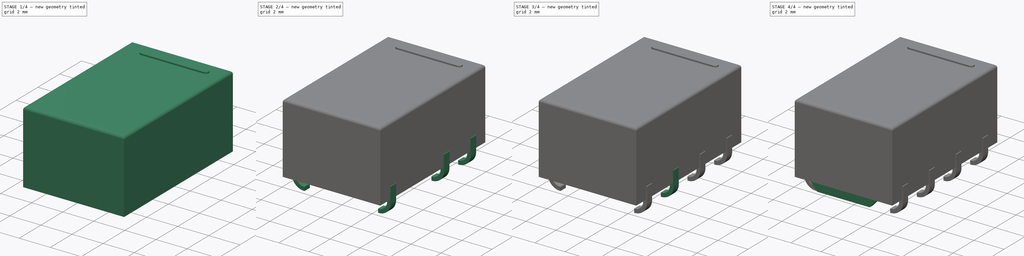
[diagram: build sequence overview — one tinted view per stage of 4, left to right]
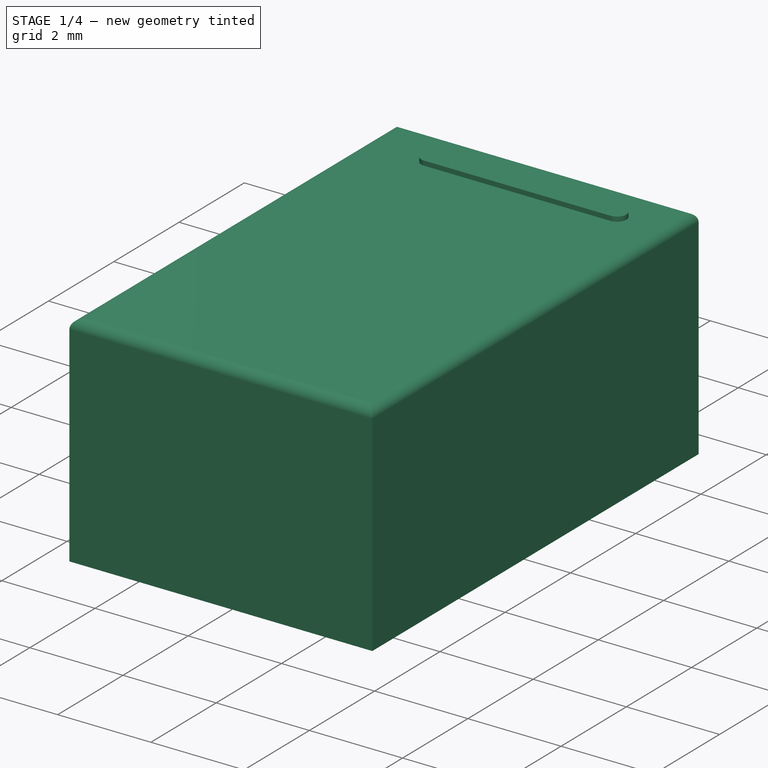
[diagram: stage 1 of 4 — iso view after this stage's code; geometry added in this stage tinted green]
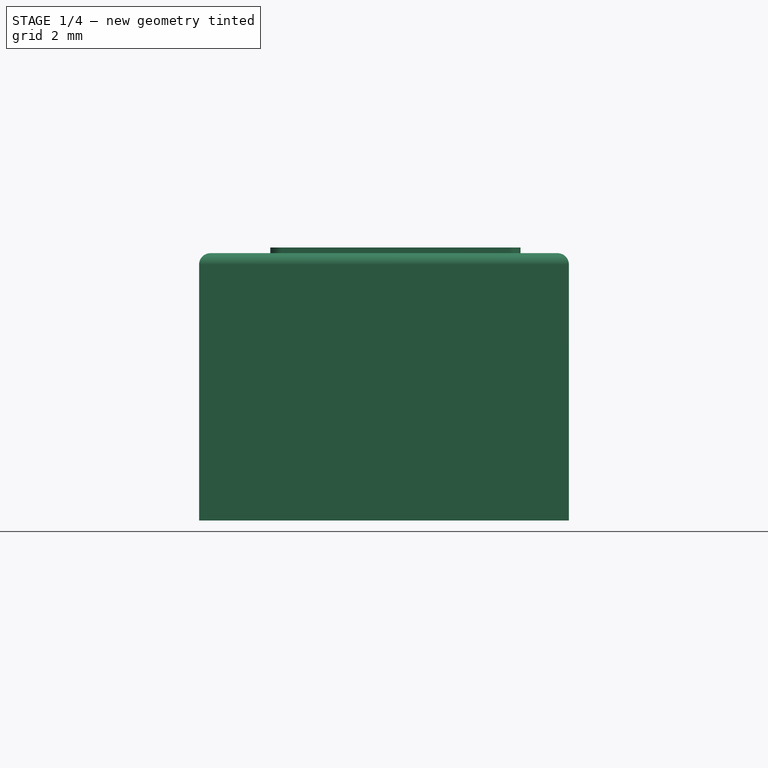
[diagram: stage 1 of 4 — front view after this stage's code; geometry added in this stage tinted green]
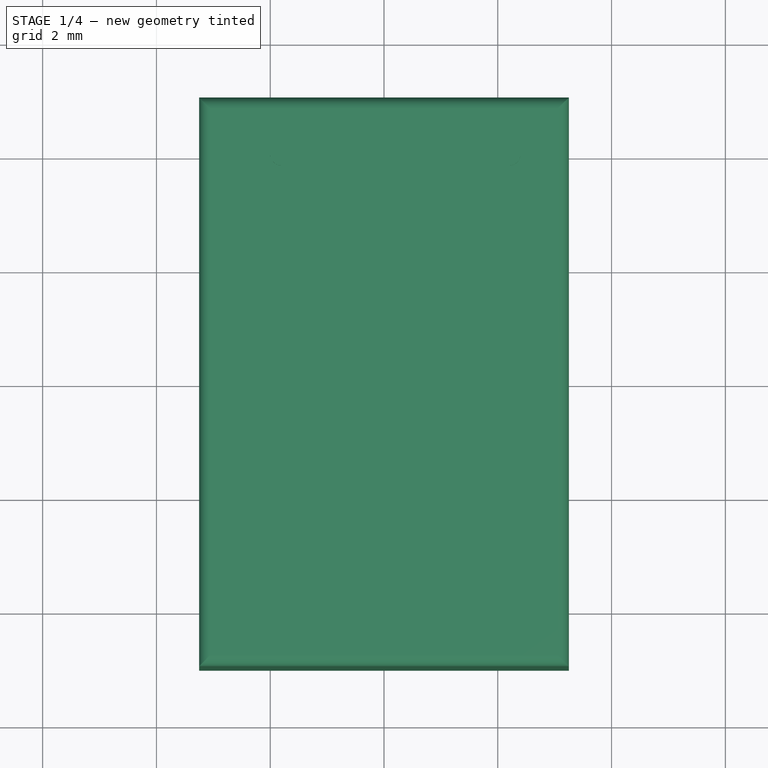
[diagram: stage 1 of 4 — top view after this stage's code; geometry added in this stage tinted green]
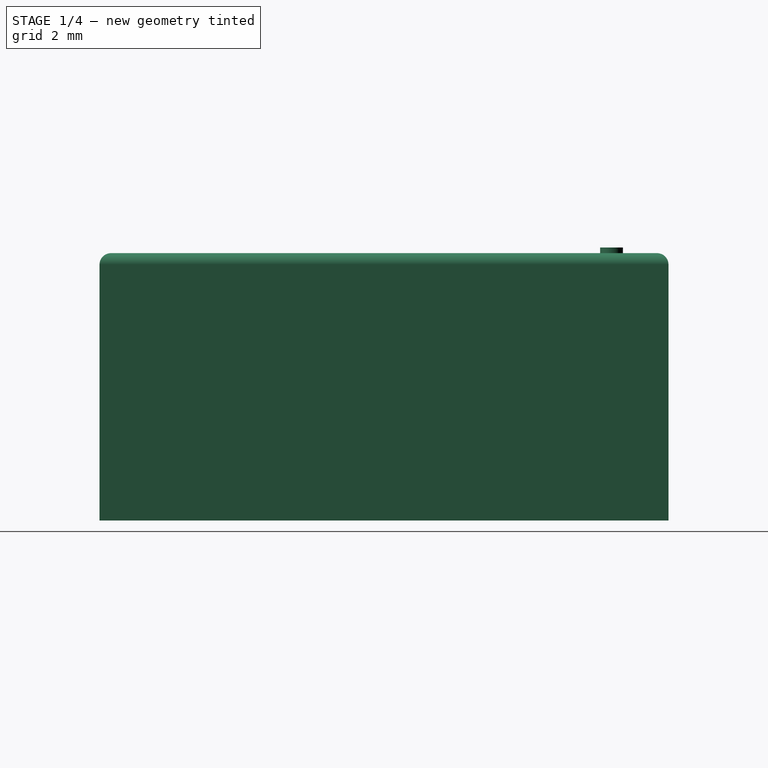
[diagram: stage 1 of 4 — right view after this stage's code; geometry added in this stage tinted green]
FCSTD DOCUMENT  (FreeCAD 0.16R6712 (Git))
Label: Relay_DPDT_Omron_G6K-2G
License: All rights reserved
LicenseURL: http://en.wikipedia.org/wiki/All_rights_reserved
objects: Sketcher::SketchObject×9, PartDesign::Pad×9, PartDesign::Fillet×1, Part::MultiFuse×1
note: 29 computed .brp shape members not serialized (recipe doc carries the construction recipe); baked Part::Feature solids carry a one-line shape summary decoded from their .brp

FEATURE [Sketcher::SketchObject] Sketch
  Placement = pos=(0,0,1) rot=(0,0,-1;1.5708rad)
  expr: Constraints[11] = 6.5 / 2
  sketch-geometry (4):
    g0: LineSegment StartX=-5 StartY=-3.25 StartZ=0 EndX=5 EndY=-3.25 EndZ=0
    g1: LineSegment StartX=5 StartY=-3.25 StartZ=0 EndX=5 EndY=3.25 EndZ=0
    g2: LineSegment StartX=5 StartY=3.25 StartZ=0 EndX=-5 EndY=3.25 EndZ=0
    g3: LineSegment StartX=-5 StartY=3.25 StartZ=0 EndX=-5 EndY=-3.25 EndZ=0
  constraints (12):
    c: Coincident(g0,g1)
    c: Coincident(g1,g2)
    c: Coincident(g2,g3)
    c: Coincident(g3,g0)
    c: Horizontal(g0)
    c: Horizontal(g2)
    c: Vertical(g1)
    c: Vertical(g3)
    c: DistanceX(g2,g2) = 10
    c: DistanceY(g1,g1) = 6.5
    c: DistanceX(g0,g-1) = 5
    c: DistanceY(g0,g-1) = 3.25
FEATURE [PartDesign::Pad] Pad
  Length = 4.7
  Length2 = 100
  Placement = pos=(0,0,1) rot=(0,0,-1;1.5708rad)
  Sketch = -> Sketch
  Type = 0
FEATURE [PartDesign::Pad] Pad014
  Length = 0.2
  Length2 = 100
  Placement = pos=(0,0,5.6) rot=(0,0,-1;1.5708rad)
  Sketch = -> Sketch001
  Type = 0
FEATURE [PartDesign::Fillet] Fillet
  Base = -> Pad [Edge4,Edge7,Edge10,Edge12]
  Placement = pos=(0,0,1) rot=(0,0,-1;1.5708rad)
  Radius = 0.2
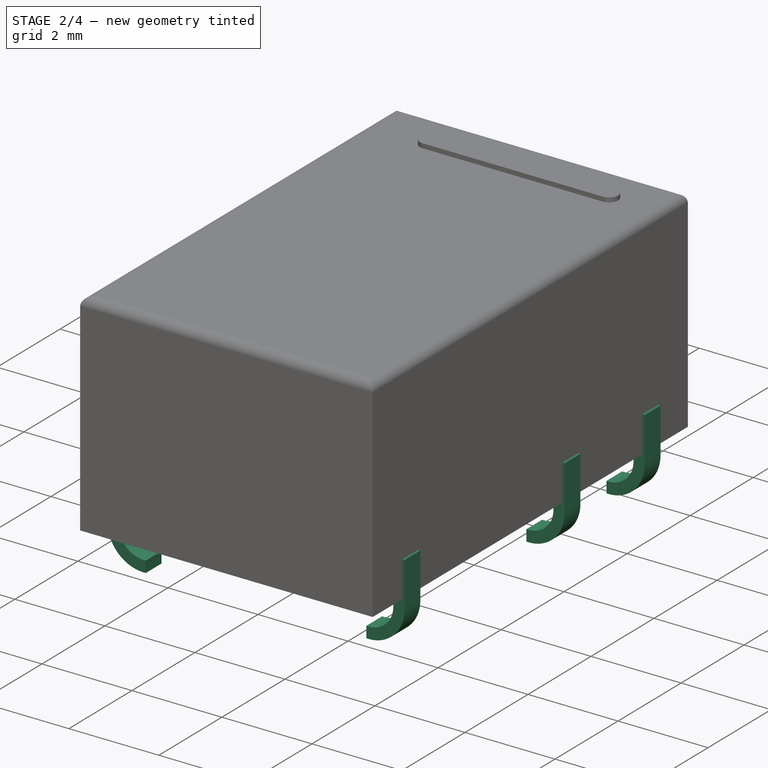
[diagram: stage 2 of 4 — iso view after this stage's code; geometry added in this stage tinted green]
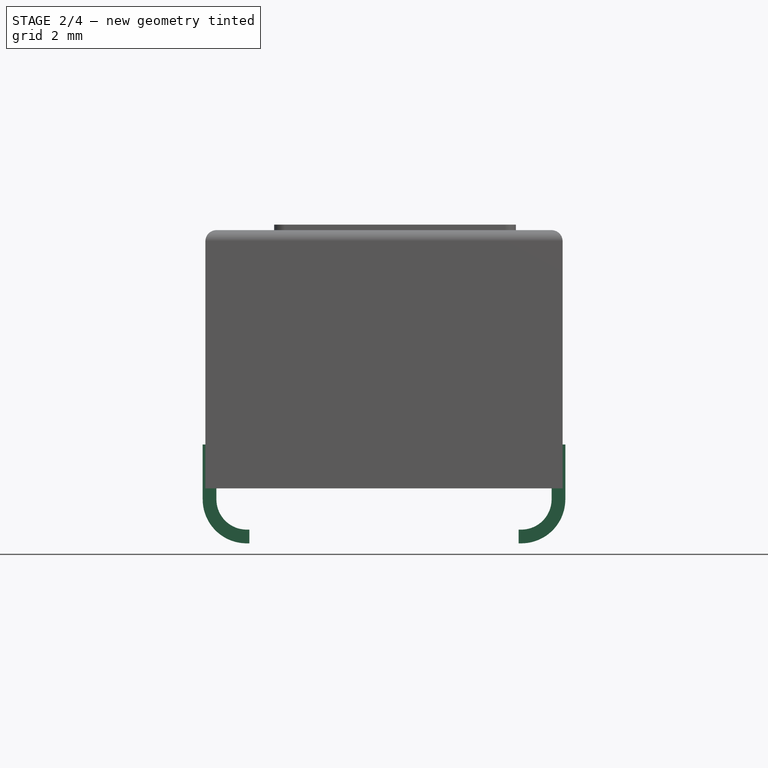
[diagram: stage 2 of 4 — front view after this stage's code; geometry added in this stage tinted green]
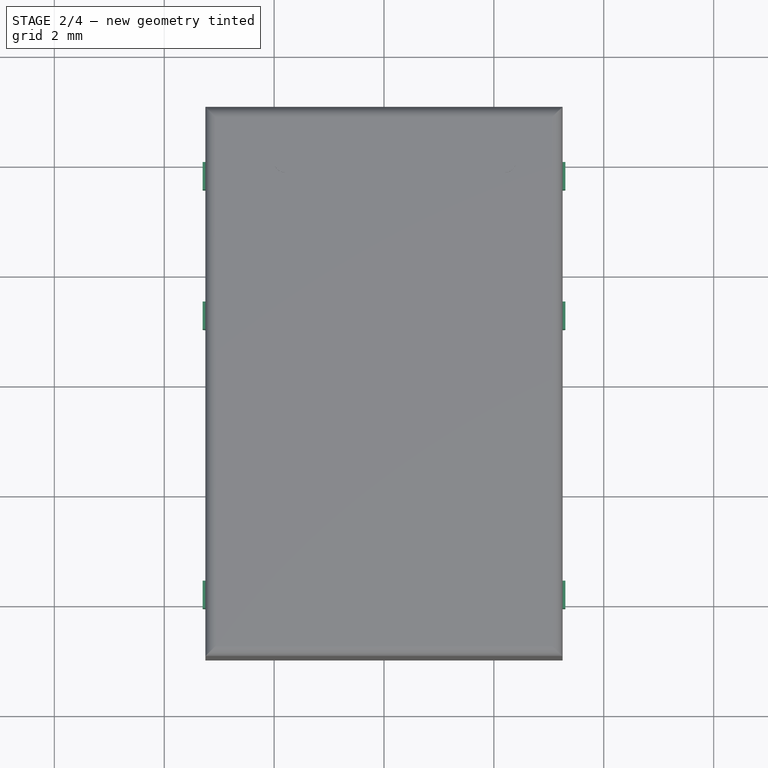
[diagram: stage 2 of 4 — top view after this stage's code; geometry added in this stage tinted green]
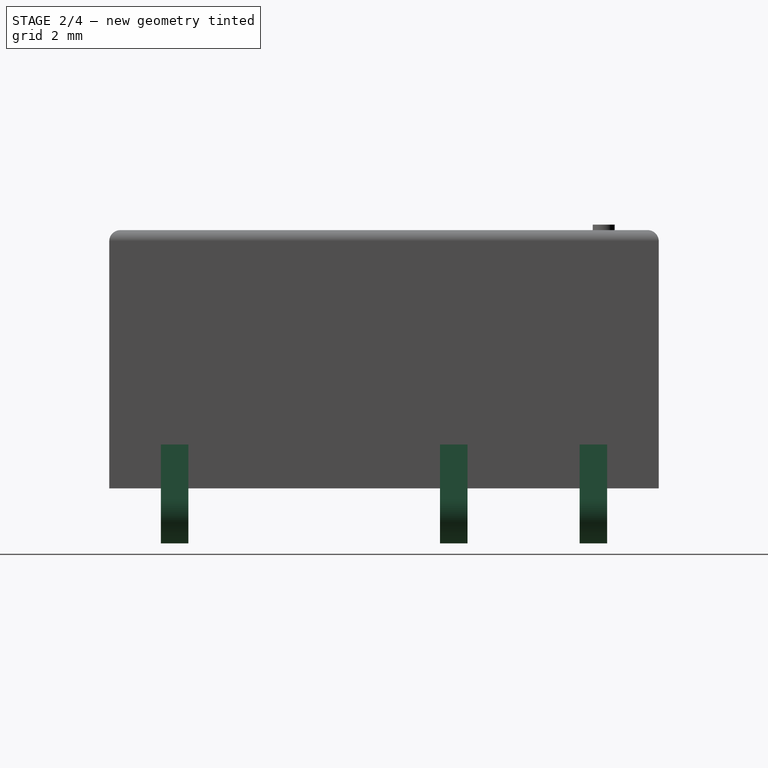
[diagram: stage 2 of 4 — right view after this stage's code; geometry added in this stage tinted green]
FEATURE [Sketcher::SketchObject] Sketch012
  Placement = pos=(0,1.27,0) rot=(1,0,0;1.5708rad)
  sketch-geometry (23):
    g0: LineSegment [constr] StartX=-3.3 StartY=1.8 StartZ=0 EndX=3.3 EndY=1.8 EndZ=0
    g1: LineSegment [constr] StartX=-2.45 StartY=7.2e-11 StartZ=0 EndX=2.45 EndY=7.2e-11 EndZ=0
    g2: GeomPoint [constr] X=0 Y=1.8 Z=0
    g3: LineSegment StartX=-3.3 StartY=1.8 StartZ=0 EndX=-3.05 EndY=1.8 EndZ=0
    g4: LineSegment StartX=-3.05 StartY=1.8 StartZ=0 EndX=-3.05 EndY=0.8 EndZ=0
    g5: LineSegment StartX=-3.3 StartY=1.8 StartZ=0 EndX=-3.3 EndY=0.8 EndZ=0
    g6: LineSegment StartX=-2.45 StartY=7.2e-11 StartZ=0 EndX=-2.45 EndY=0.25 EndZ=0
    g7: LineSegment StartX=-2.45 StartY=0.25 StartZ=0 EndX=-2.5 EndY=0.25 EndZ=0
    g8: LineSegment StartX=-2.45 StartY=7.2e-11 StartZ=0 EndX=-2.5 EndY=0 EndZ=0
    g9: ArcOfCircle CenterX=-2.5 CenterY=0.8 CenterZ=0 NormalX=0 NormalY=0 NormalZ=1 Radius=0.55 StartAngle=3.14159 EndAngle=4.71239
    g10: ArcOfCircle CenterX=-2.5 CenterY=0.8 CenterZ=0 NormalX=0 NormalY=0 NormalZ=1 Radius=0.8 StartAngle=3.14159 EndAngle=4.71239
    g11: LineSegment [constr] StartX=-3.05 StartY=0.8 StartZ=0 EndX=-2.5 EndY=0.8 EndZ=0
    g12: LineSegment [constr] StartX=-2.5 StartY=0.8 StartZ=0 EndX=-2.5 EndY=0.25 EndZ=0
    g13: LineSegment [constr] StartX=2.5 StartY=0.8 StartZ=0 EndX=2.5 EndY=0.25 EndZ=0
    g14: LineSegment [constr] StartX=2.5 StartY=0.8 StartZ=0 EndX=3.05 EndY=0.8 EndZ=0
    g15: ArcOfCircle CenterX=2.5 CenterY=0.8 CenterZ=0 NormalX=0 NormalY=0 NormalZ=1 Radius=0.55 StartAngle=4.71239 EndAngle=6.28319
    g16: ArcOfCircle CenterX=2.5 CenterY=0.8 CenterZ=0 NormalX=0 NormalY=0 NormalZ=1 Radius=0.8 StartAngle=4.7124 EndAngle=6.28319
    g17: LineSegment StartX=2.5 StartY=0.25 StartZ=0 EndX=2.45 EndY=0.25 EndZ=0
    g18: LineSegment StartX=2.45 StartY=0.25 StartZ=0 EndX=2.45 EndY=7.2e-11 EndZ=0
    g19: LineSegment StartX=2.45 StartY=7.2e-11 StartZ=0 EndX=2.50001 EndY=7.2e-11 EndZ=0
    g20: LineSegment StartX=3.3 StartY=0.8 StartZ=0 EndX=3.3 EndY=1.8 EndZ=0
    g21: LineSegment StartX=3.3 StartY=1.8 StartZ=0 EndX=3.05 EndY=1.8 EndZ=0
    g22: LineSegment StartX=3.05 StartY=1.8 StartZ=0 EndX=3.05 EndY=0.8 EndZ=0
  constraints (63):
    c: Horizontal(g0)
    c: Horizontal(g1)
    c: Symmetric(g1,g1,g-1)
    c: PointOnObject(g2,g0)
    c: PointOnObject(g2,g-2)
    c: Symmetric(g0,g0,g2)
    c: DistanceY(g1,g0) = 1.8
    c: DistanceX(g1,g1) = 4.9
    c: DistanceX(g0,g0) = 6.6
    c: Coincident(g3,g0)
    c: PointOnObject(g3,g0)
    c: Coincident(g4,g3)
    c: Vertical(g4)
    c: Coincident(g5,g0)
    c: Vertical(g5)
    c: Coincident(g6,g1)
    c: Vertical(g6)
    c: Coincident(g7,g6)
    c: Horizontal(g7)
    c: Coincident(g8,g1)
    c: PointOnObject(g8,g-1)
    c: Coincident(g9,g4)
    c: Coincident(g9,g7)
    c: Coincident(g10,g9)
    c: Coincident(g10,g5)
    c: Coincident(g10,g8)
    c: Coincident(g11,g4)
    c: Coincident(g11,g9)
    c: Coincident(g12,g9)
    c: Coincident(g12,g7)
    c: Vertical(g12)
    c: Horizontal(g11)
    c: DistanceX(g0,g3) = 0.25
    c: Equal(g7,g8)
    c: Equal(g5,g4)
    c: DistanceY(g1,g5) = 0.8
    c: Vertical(g13)
    c: Coincident(g14,g13)
    c: Horizontal(g14)
    c: Coincident(g15,g13)
    c: Coincident(g15,g14)
    c: Coincident(g15,g13)
    c: Coincident(g16,g13)
    c: Coincident(g17,g13)
    c: Horizontal(g17)
    c: Coincident(g18,g17)
    c: Coincident(g18,g1)
    c: Vertical(g18)
    c: Coincident(g19,g1)
    c: Coincident(g19,g16)
    c: Horizontal(g19)
    c: Coincident(g20,g16)
    c: Coincident(g20,g0)
    c: Vertical(g20)
    c: Coincident(g21,g0)
    c: PointOnObject(g21,g0)
    c: Coincident(g22,g21)
    c: Coincident(g22,g14)
    c: Vertical(g22)
    c: Equal(g4,g22)
    c: Equal(g22,g20)
    c: Equal(g21,g6)
    c: Equal(g21,g18)
FEATURE [PartDesign::Pad] Pad011
  Length = 0.5
  Length2 = 100
  Midplane = true
  Placement = pos=(0,1.27,0) rot=(1,0,0;1.5708rad)
  Sketch = -> Sketch012
  Type = 0
FEATURE [Sketcher::SketchObject] Sketch013
  Placement = pos=(0,3.81,0) rot=(1,0,0;1.5708rad)
  expr: Placement.Base.y = 3 * 1.27
  sketch-geometry (23):
    g0: LineSegment [constr] StartX=-3.3 StartY=1.8 StartZ=0 EndX=3.3 EndY=1.8 EndZ=0
    g1: LineSegment [constr] StartX=-2.45 StartY=7.2e-11 StartZ=0 EndX=2.45 EndY=7.2e-11 EndZ=0
    g2: GeomPoint [constr] X=0 Y=1.8 Z=0
    g3: LineSegment StartX=-3.3 StartY=1.8 StartZ=0 EndX=-3.05 EndY=1.8 EndZ=0
    g4: LineSegment StartX=-3.05 StartY=1.8 StartZ=0 EndX=-3.05 EndY=0.8 EndZ=0
    g5: LineSegment StartX=-3.3 StartY=1.8 StartZ=0 EndX=-3.3 EndY=0.8 EndZ=0
    g6: LineSegment StartX=-2.45 StartY=7.2e-11 StartZ=0 EndX=-2.45 EndY=0.25 EndZ=0
    g7: LineSegment StartX=-2.45 StartY=0.25 StartZ=0 EndX=-2.5 EndY=0.25 EndZ=0
    g8: LineSegment StartX=-2.45 StartY=7.2e-11 StartZ=0 EndX=-2.5 EndY=0 EndZ=0
    g9: ArcOfCircle CenterX=-2.5 CenterY=0.8 CenterZ=0 NormalX=0 NormalY=0 NormalZ=1 Radius=0.55 StartAngle=3.14159 EndAngle=4.71239
    g10: ArcOfCircle CenterX=-2.5 CenterY=0.8 CenterZ=0 NormalX=0 NormalY=0 NormalZ=1 Radius=0.8 StartAngle=3.14159 EndAngle=4.71239
    g11: LineSegment [constr] StartX=-3.05 StartY=0.8 StartZ=0 EndX=-2.5 EndY=0.8 EndZ=0
    g12: LineSegment [constr] StartX=-2.5 StartY=0.8 StartZ=0 EndX=-2.5 EndY=0.25 EndZ=0
    g13: LineSegment [constr] StartX=2.5 StartY=0.8 StartZ=0 EndX=2.5 EndY=0.25 EndZ=0
    g14: LineSegment [constr] StartX=2.5 StartY=0.8 StartZ=0 EndX=3.05 EndY=0.8 EndZ=0
    g15: ArcOfCircle CenterX=2.5 CenterY=0.8 CenterZ=0 NormalX=0 NormalY=0 NormalZ=1 Radius=0.55 StartAngle=4.71239 EndAngle=6.28319
    g16: ArcOfCircle CenterX=2.5 CenterY=0.8 CenterZ=0 NormalX=0 NormalY=0 NormalZ=1 Radius=0.8 StartAngle=4.7124 EndAngle=6.28319
    g17: LineSegment StartX=2.5 StartY=0.25 StartZ=0 EndX=2.45 EndY=0.25 EndZ=0
    g18: LineSegment StartX=2.45 StartY=0.25 StartZ=0 EndX=2.45 EndY=7.2e-11 EndZ=0
    g19: LineSegment StartX=2.45 StartY=7.2e-11 StartZ=0 EndX=2.50001 EndY=7.2e-11 EndZ=0
    g20: LineSegment StartX=3.3 StartY=0.8 StartZ=0 EndX=3.3 EndY=1.8 EndZ=0
    g21: LineSegment StartX=3.3 StartY=1.8 StartZ=0 EndX=3.05 EndY=1.8 EndZ=0
    g22: LineSegment StartX=3.05 StartY=1.8 StartZ=0 EndX=3.05 EndY=0.8 EndZ=0
  constraints (63):
    c: Horizontal(g0)
    c: Horizontal(g1)
    c: Symmetric(g1,g1,g-1)
    c: PointOnObject(g2,g0)
    c: PointOnObject(g2,g-2)
    c: Symmetric(g0,g0,g2)
    c: DistanceY(g1,g0) = 1.8
    c: DistanceX(g1,g1) = 4.9
    c: DistanceX(g0,g0) = 6.6
    c: Coincident(g3,g0)
    c: PointOnObject(g3,g0)
    c: Coincident(g4,g3)
    c: Vertical(g4)
    c: Coincident(g5,g0)
    c: Vertical(g5)
    c: Coincident(g6,g1)
    c: Vertical(g6)
    c: Coincident(g7,g6)
    c: Horizontal(g7)
    c: Coincident(g8,g1)
    c: PointOnObject(g8,g-1)
    c: Coincident(g9,g4)
    c: Coincident(g9,g7)
    c: Coincident(g10,g9)
    c: Coincident(g10,g5)
    c: Coincident(g10,g8)
    c: Coincident(g11,g4)
    c: Coincident(g11,g9)
    c: Coincident(g12,g9)
    c: Coincident(g12,g7)
    c: Vertical(g12)
    c: Horizontal(g11)
    c: DistanceX(g0,g3) = 0.25
    c: Equal(g7,g8)
    c: Equal(g5,g4)
    c: DistanceY(g1,g5) = 0.8
    c: Vertical(g13)
    c: Coincident(g14,g13)
    c: Horizontal(g14)
    c: Coincident(g15,g13)
    c: Coincident(g15,g14)
    c: Coincident(g15,g13)
    c: Coincident(g16,g13)
    c: Coincident(g17,g13)
    c: Horizontal(g17)
    c: Coincident(g18,g17)
    c: Coincident(g18,g1)
    c: Vertical(g18)
    c: Coincident(g19,g1)
    c: Coincident(g19,g16)
    c: Horizontal(g19)
    c: Coincident(g20,g16)
    c: Coincident(g20,g0)
    c: Vertical(g20)
    c: Coincident(g21,g0)
    c: PointOnObject(g21,g0)
    c: Coincident(g22,g21)
    c: Coincident(g22,g14)
    c: Vertical(g22)
    c: Equal(g4,g22)
    c: Equal(g22,g20)
    c: Equal(g21,g6)
    c: Equal(g21,g18)
FEATURE [PartDesign::Pad] Pad012
  Length = 0.5
  Length2 = 100
  Midplane = true
  Placement = pos=(0,3.81,0) rot=(1,0,0;1.5708rad)
  Sketch = -> Sketch013
  Type = 0
FEATURE [Sketcher::SketchObject] Sketch014
  Placement = pos=(0,-3.81,0) rot=(1,0,0;1.5708rad)
  expr: Placement.Base.y = -3 * 1.27
  sketch-geometry (23):
    g0: LineSegment [constr] StartX=-3.3 StartY=1.8 StartZ=0 EndX=3.3 EndY=1.8 EndZ=0
    g1: LineSegment [constr] StartX=-2.45 StartY=7.2e-11 StartZ=0 EndX=2.45 EndY=7.2e-11 EndZ=0
    g2: GeomPoint [constr] X=0 Y=1.8 Z=0
    g3: LineSegment StartX=-3.3 StartY=1.8 StartZ=0 EndX=-3.05 EndY=1.8 EndZ=0
    g4: LineSegment StartX=-3.05 StartY=1.8 StartZ=0 EndX=-3.05 EndY=0.8 EndZ=0
    g5: LineSegment StartX=-3.3 StartY=1.8 StartZ=0 EndX=-3.3 EndY=0.8 EndZ=0
    g6: LineSegment StartX=-2.45 StartY=7.2e-11 StartZ=0 EndX=-2.45 EndY=0.25 EndZ=0
    g7: LineSegment StartX=-2.45 StartY=0.25 StartZ=0 EndX=-2.5 EndY=0.25 EndZ=0
    g8: LineSegment StartX=-2.45 StartY=7.2e-11 StartZ=0 EndX=-2.5 EndY=0 EndZ=0
    g9: ArcOfCircle CenterX=-2.5 CenterY=0.8 CenterZ=0 NormalX=0 NormalY=0 NormalZ=1 Radius=0.55 StartAngle=3.14159 EndAngle=4.71239
    g10: ArcOfCircle CenterX=-2.5 CenterY=0.8 CenterZ=0 NormalX=0 NormalY=0 NormalZ=1 Radius=0.8 StartAngle=3.14159 EndAngle=4.71239
    g11: LineSegment [constr] StartX=-3.05 StartY=0.8 StartZ=0 EndX=-2.5 EndY=0.8 EndZ=0
    g12: LineSegment [constr] StartX=-2.5 StartY=0.8 StartZ=0 EndX=-2.5 EndY=0.25 EndZ=0
    g13: LineSegment [constr] StartX=2.5 StartY=0.8 StartZ=0 EndX=2.5 EndY=0.25 EndZ=0
    g14: LineSegment [constr] StartX=2.5 StartY=0.8 StartZ=0 EndX=3.05 EndY=0.8 EndZ=0
    g15: ArcOfCircle CenterX=2.5 CenterY=0.8 CenterZ=0 NormalX=0 NormalY=0 NormalZ=1 Radius=0.55 StartAngle=4.71239 EndAngle=6.28319
    g16: ArcOfCircle CenterX=2.5 CenterY=0.8 CenterZ=0 NormalX=0 NormalY=0 NormalZ=1 Radius=0.8 StartAngle=4.7124 EndAngle=6.28319
    g17: LineSegment StartX=2.5 StartY=0.25 StartZ=0 EndX=2.45 EndY=0.25 EndZ=0
    g18: LineSegment StartX=2.45 StartY=0.25 StartZ=0 EndX=2.45 EndY=7.2e-11 EndZ=0
    g19: LineSegment StartX=2.45 StartY=7.2e-11 StartZ=0 EndX=2.50001 EndY=7.2e-11 EndZ=0
    g20: LineSegment StartX=3.3 StartY=0.8 StartZ=0 EndX=3.3 EndY=1.8 EndZ=0
    g21: LineSegment StartX=3.3 StartY=1.8 StartZ=0 EndX=3.05 EndY=1.8 EndZ=0
    g22: LineSegment StartX=3.05 StartY=1.8 StartZ=0 EndX=3.05 EndY=0.8 EndZ=0
  constraints (63):
    c: Horizontal(g0)
    c: Horizontal(g1)
    c: Symmetric(g1,g1,g-1)
    c: PointOnObject(g2,g0)
    c: PointOnObject(g2,g-2)
    c: Symmetric(g0,g0,g2)
    c: DistanceY(g1,g0) = 1.8
    c: DistanceX(g1,g1) = 4.9
    c: DistanceX(g0,g0) = 6.6
    c: Coincident(g3,g0)
    c: PointOnObject(g3,g0)
    c: Coincident(g4,g3)
    c: Vertical(g4)
    c: Coincident(g5,g0)
    c: Vertical(g5)
    c: Coincident(g6,g1)
    c: Vertical(g6)
    c: Coincident(g7,g6)
    c: Horizontal(g7)
    c: Coincident(g8,g1)
    c: PointOnObject(g8,g-1)
    c: Coincident(g9,g4)
    c: Coincident(g9,g7)
    c: Coincident(g10,g9)
    c: Coincident(g10,g5)
    c: Coincident(g10,g8)
    c: Coincident(g11,g4)
    c: Coincident(g11,g9)
    c: Coincident(g12,g9)
    c: Coincident(g12,g7)
    c: Vertical(g12)
    c: Horizontal(g11)
    c: DistanceX(g0,g3) = 0.25
    c: Equal(g7,g8)
    c: Equal(g5,g4)
    c: DistanceY(g1,g5) = 0.8
    c: Vertical(g13)
    c: Coincident(g14,g13)
    c: Horizontal(g14)
    c: Coincident(g15,g13)
    c: Coincident(g15,g14)
    c: Coincident(g15,g13)
    c: Coincident(g16,g13)
    c: Coincident(g17,g13)
    c: Horizontal(g17)
    c: Coincident(g18,g17)
    c: Coincident(g18,g1)
    c: Vertical(g18)
    c: Coincident(g19,g1)
    c: Coincident(g19,g16)
    c: Horizontal(g19)
    c: Coincident(g20,g16)
    c: Coincident(g20,g0)
    c: Vertical(g20)
    c: Coincident(g21,g0)
    c: PointOnObject(g21,g0)
    c: Coincident(g22,g21)
    c: Coincident(g22,g14)
    c: Vertical(g22)
    c: Equal(g4,g22)
    c: Equal(g22,g20)
    c: Equal(g21,g6)
    c: Equal(g21,g18)
FEATURE [PartDesign::Pad] Pad013
  Length = 0.5
  Length2 = 100
  Midplane = true
  Placement = pos=(0,-3.81,0) rot=(1,0,0;1.5708rad)
  Sketch = -> Sketch014
  Type = 0
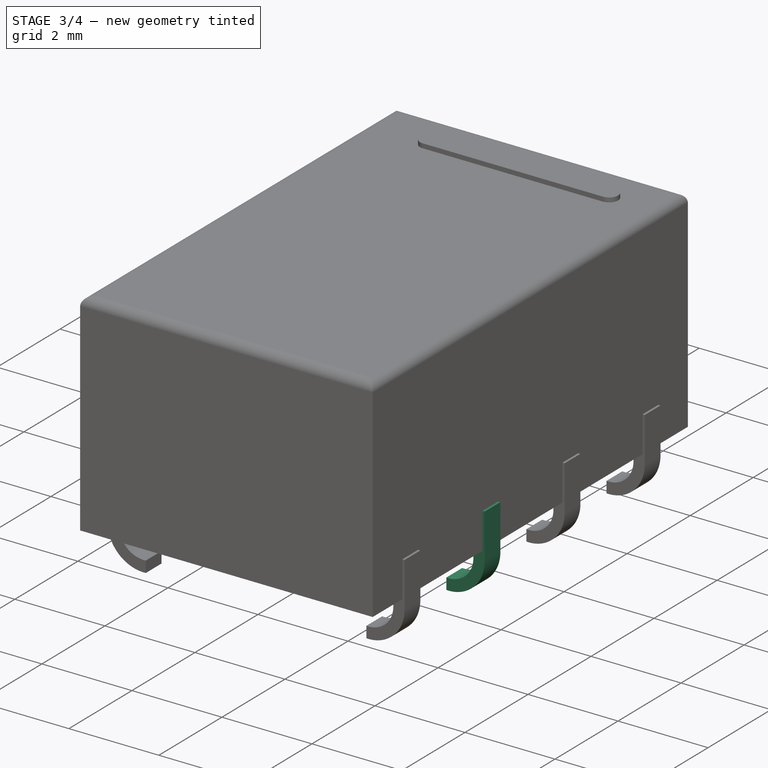
[diagram: stage 3 of 4 — iso view after this stage's code; geometry added in this stage tinted green]
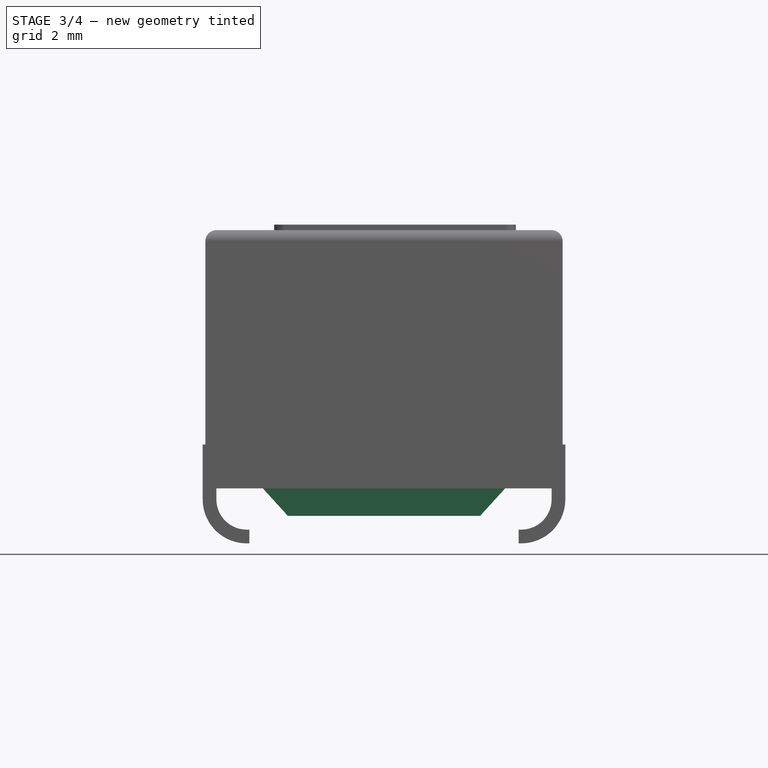
[diagram: stage 3 of 4 — front view after this stage's code; geometry added in this stage tinted green]
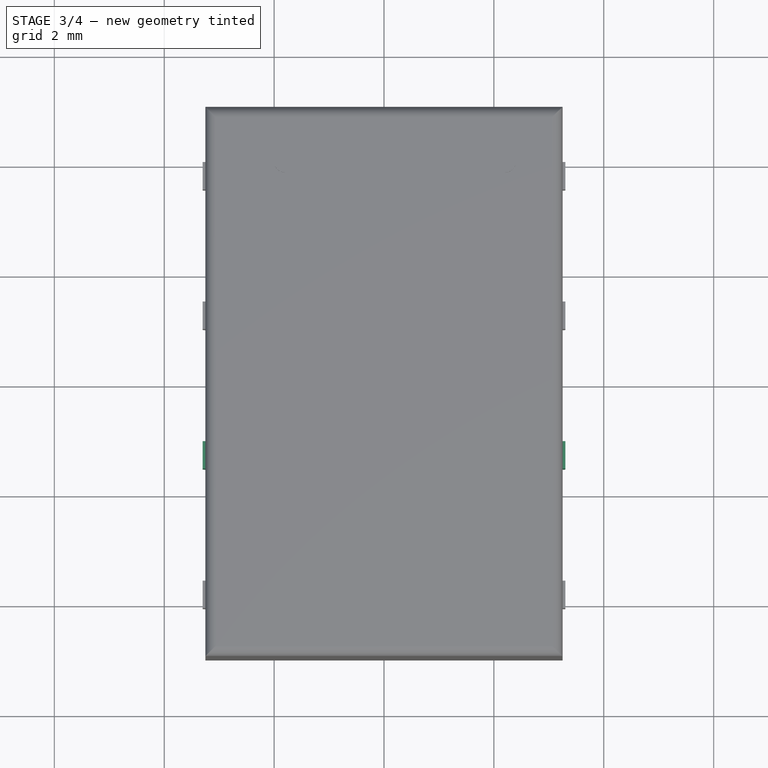
[diagram: stage 3 of 4 — top view after this stage's code; geometry added in this stage tinted green]
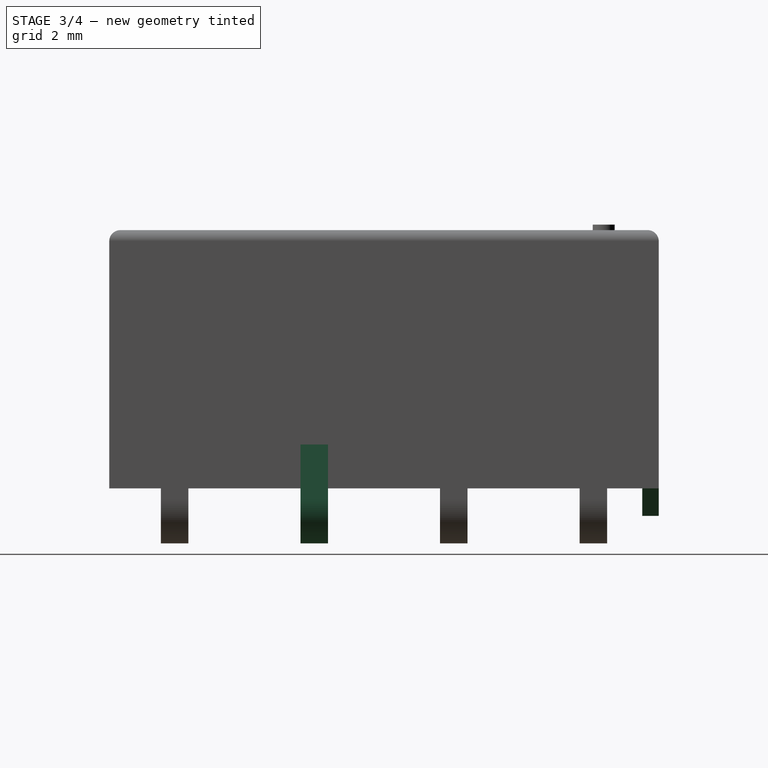
[diagram: stage 3 of 4 — right view after this stage's code; geometry added in this stage tinted green]
FEATURE [PartDesign::Pad] Pad008
  Length = 0.3
  Length2 = 100
  Placement = pos=(0,5,0) rot=(1,0,0;1.5708rad)
  Sketch = -> Sketch010
  Type = 0
FEATURE [Sketcher::SketchObject] Sketch011
  Placement = pos=(0,-1.27,0) rot=(1,0,0;1.5708rad)
  sketch-geometry (23):
    g0: LineSegment [constr] StartX=-3.3 StartY=1.8 StartZ=0 EndX=3.3 EndY=1.8 EndZ=0
    g1: LineSegment [constr] StartX=-2.45 StartY=7.2e-11 StartZ=0 EndX=2.45 EndY=7.2e-11 EndZ=0
    g2: GeomPoint [constr] X=0 Y=1.8 Z=0
    g3: LineSegment StartX=-3.3 StartY=1.8 StartZ=0 EndX=-3.05 EndY=1.8 EndZ=0
    g4: LineSegment StartX=-3.05 StartY=1.8 StartZ=0 EndX=-3.05 EndY=0.8 EndZ=0
    g5: LineSegment StartX=-3.3 StartY=1.8 StartZ=0 EndX=-3.3 EndY=0.8 EndZ=0
    g6: LineSegment StartX=-2.45 StartY=7.2e-11 StartZ=0 EndX=-2.45 EndY=0.25 EndZ=0
    g7: LineSegment StartX=-2.45 StartY=0.25 StartZ=0 EndX=-2.5 EndY=0.25 EndZ=0
    g8: LineSegment StartX=-2.45 StartY=7.2e-11 StartZ=0 EndX=-2.5 EndY=0 EndZ=0
    g9: ArcOfCircle CenterX=-2.5 CenterY=0.8 CenterZ=0 NormalX=0 NormalY=0 NormalZ=1 Radius=0.55 StartAngle=3.14159 EndAngle=4.71239
    g10: ArcOfCircle CenterX=-2.5 CenterY=0.8 CenterZ=0 NormalX=0 NormalY=0 NormalZ=1 Radius=0.8 StartAngle=3.14159 EndAngle=4.71239
    g11: LineSegment [constr] StartX=-3.05 StartY=0.8 StartZ=0 EndX=-2.5 EndY=0.8 EndZ=0
    g12: LineSegment [constr] StartX=-2.5 StartY=0.8 StartZ=0 EndX=-2.5 EndY=0.25 EndZ=0
    g13: LineSegment [constr] StartX=2.5 StartY=0.8 StartZ=0 EndX=2.5 EndY=0.25 EndZ=0
    g14: LineSegment [constr] StartX=2.5 StartY=0.8 StartZ=0 EndX=3.05 EndY=0.8 EndZ=0
    g15: ArcOfCircle CenterX=2.5 CenterY=0.8 CenterZ=0 NormalX=0 NormalY=0 NormalZ=1 Radius=0.55 StartAngle=4.71239 EndAngle=6.28319
    g16: ArcOfCircle CenterX=2.5 CenterY=0.8 CenterZ=0 NormalX=0 NormalY=0 NormalZ=1 Radius=0.8 StartAngle=4.7124 EndAngle=6.28319
    g17: LineSegment StartX=2.5 StartY=0.25 StartZ=0 EndX=2.45 EndY=0.25 EndZ=0
    g18: LineSegment StartX=2.45 StartY=0.25 StartZ=0 EndX=2.45 EndY=7.2e-11 EndZ=0
    g19: LineSegment StartX=2.45 StartY=7.2e-11 StartZ=0 EndX=2.50001 EndY=7.2e-11 EndZ=0
    g20: LineSegment StartX=3.3 StartY=0.8 StartZ=0 EndX=3.3 EndY=1.8 EndZ=0
    g21: LineSegment StartX=3.3 StartY=1.8 StartZ=0 EndX=3.05 EndY=1.8 EndZ=0
    g22: LineSegment StartX=3.05 StartY=1.8 StartZ=0 EndX=3.05 EndY=0.8 EndZ=0
  constraints (63):
    c: Horizontal(g0)
    c: Horizontal(g1)
    c: Symmetric(g1,g1,g-1)
    c: PointOnObject(g2,g0)
    c: PointOnObject(g2,g-2)
    c: Symmetric(g0,g0,g2)
    c: DistanceY(g1,g0) = 1.8
    c: DistanceX(g1,g1) = 4.9
    c: DistanceX(g0,g0) = 6.6
    c: Coincident(g3,g0)
    c: PointOnObject(g3,g0)
    c: Coincident(g4,g3)
    c: Vertical(g4)
    c: Coincident(g5,g0)
    c: Vertical(g5)
    c: Coincident(g6,g1)
    c: Vertical(g6)
    c: Coincident(g7,g6)
    c: Horizontal(g7)
    c: Coincident(g8,g1)
    c: PointOnObject(g8,g-1)
    c: Coincident(g9,g4)
    c: Coincident(g9,g7)
    c: Coincident(g10,g9)
    c: Coincident(g10,g5)
    c: Coincident(g10,g8)
    c: Coincident(g11,g4)
    c: Coincident(g11,g9)
    c: Coincident(g12,g9)
    c: Coincident(g12,g7)
    c: Vertical(g12)
    c: Horizontal(g11)
    c: DistanceX(g0,g3) = 0.25
    c: Equal(g7,g8)
    c: Equal(g5,g4)
    c: DistanceY(g1,g5) = 0.8
    c: Vertical(g13)
    c: Coincident(g14,g13)
    c: Horizontal(g14)
    c: Coincident(g15,g13)
    c: Coincident(g15,g14)
    c: Coincident(g15,g13)
    c: Coincident(g16,g13)
    c: Coincident(g17,g13)
    c: Horizontal(g17)
    c: Coincident(g18,g17)
    c: Coincident(g18,g1)
    c: Vertical(g18)
    c: Coincident(g19,g1)
    c: Coincident(g19,g16)
    c: Horizontal(g19)
    c: Coincident(g20,g16)
    c: Coincident(g20,g0)
    c: Vertical(g20)
    c: Coincident(g21,g0)
    c: PointOnObject(g21,g0)
    c: Coincident(g22,g21)
    c: Coincident(g22,g14)
    c: Vertical(g22)
    c: Equal(g4,g22)
    c: Equal(g22,g20)
    c: Equal(g21,g6)
    c: Equal(g21,g18)
FEATURE [PartDesign::Pad] Pad010
  Length = 0.5
  Length2 = 100
  Midplane = true
  Placement = pos=(0,-1.27,0) rot=(1,0,0;1.5708rad)
  Sketch = -> Sketch011
  Type = 0
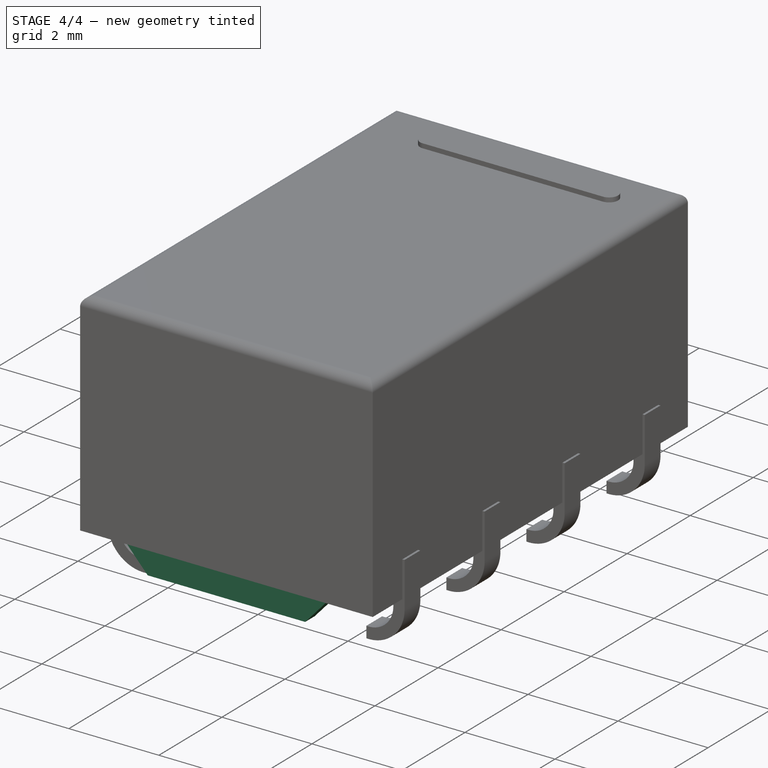
[diagram: stage 4 of 4 — iso view after this stage's code; geometry added in this stage tinted green]
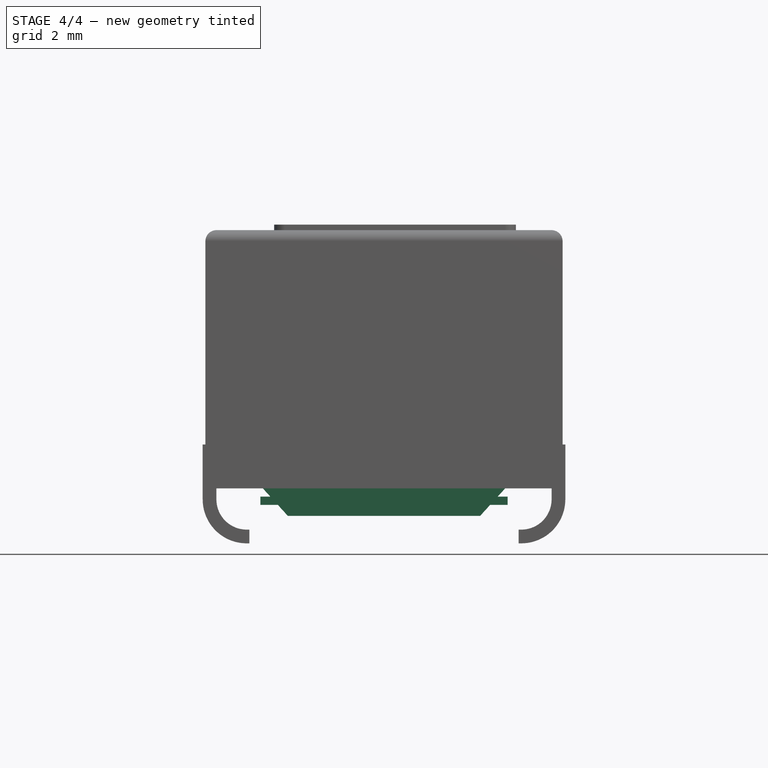
[diagram: stage 4 of 4 — front view after this stage's code; geometry added in this stage tinted green]
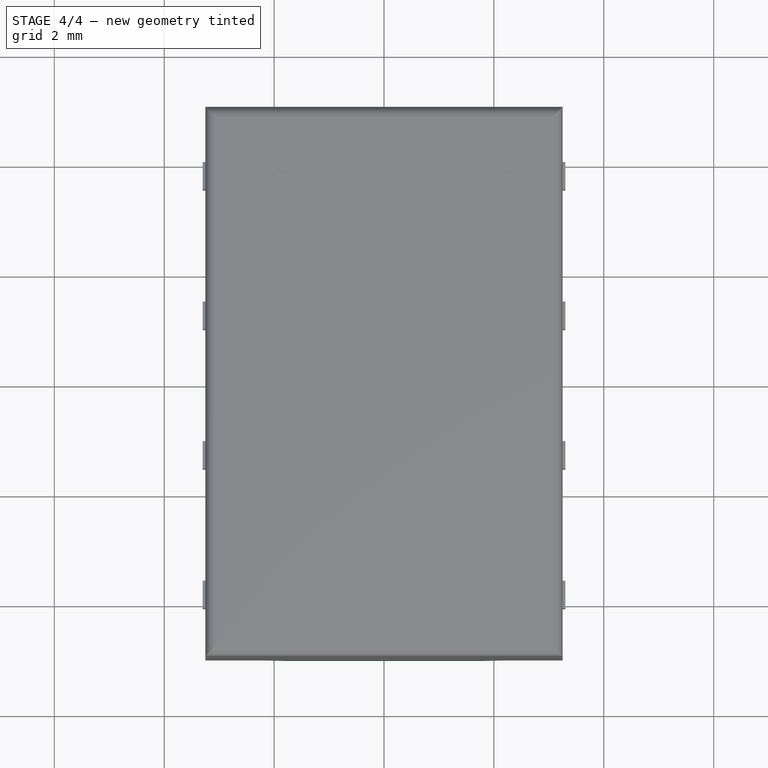
[diagram: stage 4 of 4 — top view after this stage's code; geometry added in this stage tinted green]
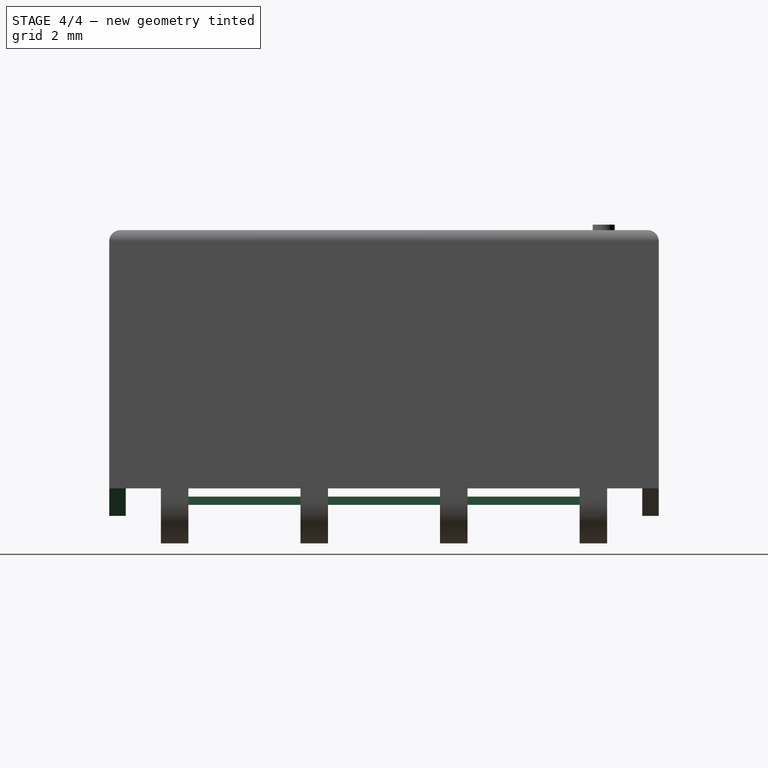
[diagram: stage 4 of 4 — right view after this stage's code; geometry added in this stage tinted green]
FEATURE [Sketcher::SketchObject] Sketch001
  Placement = pos=(0,0,5.6) rot=(0,0,-1;1.5708rad)
  sketch-geometry (6):
    g0: LineSegment [constr] StartX=-4.2 StartY=-1.8 StartZ=0 EndX=-3.8 EndY=-1.8 EndZ=0
    g1: LineSegment StartX=-3.8 StartY=-1.8 StartZ=0 EndX=-3.8 EndY=2.2 EndZ=0
    g2: LineSegment [constr] StartX=-3.8 StartY=2.2 StartZ=0 EndX=-4.2 EndY=2.2 EndZ=0
    g3: LineSegment StartX=-4.2 StartY=2.2 StartZ=0 EndX=-4.2 EndY=-1.8 EndZ=0
    g4: ArcOfCircle CenterX=-4 CenterY=2.2 CenterZ=0 NormalX=0 NormalY=0 NormalZ=1 Radius=0.2 StartAngle=0 EndAngle=3.14159
    g5: ArcOfCircle CenterX=-4 CenterY=-1.8 CenterZ=0 NormalX=0 NormalY=0 NormalZ=1 Radius=0.2 StartAngle=3.14159 EndAngle=6.28319
  constraints (18):
    c: Coincident(g0,g1)
    c: Coincident(g1,g2)
    c: Coincident(g2,g3)
    c: Horizontal(g0)
    c: Horizontal(g2)
    c: Vertical(g1)
    c: Vertical(g3)
    c: DistanceY(g1,g1) = 4
    c: DistanceX(g2,g2) = 0.4
    c: PointOnObject(g4,g2)
    c: Coincident(g4,g2)
    c: Coincident(g4,g1)
    c: Coincident(g5,g0)
    c: Coincident(g5,g3)
    c: Coincident(g0,g3)
    c: PointOnObject(g5,g0)
    c: DistanceY(g5,g-1) = 1.8
    c: DistanceX(g5,g-1) = 4
FEATURE [Sketcher::SketchObject] Sketch008
  Placement = pos=(0,0,0) rot=(1,0,0;1.5708rad)
  sketch-geometry (5):
    g0: LineSegment StartX=-2.25 StartY=0.85 StartZ=0 EndX=2.25 EndY=0.85 EndZ=0
    g1: LineSegment StartX=2.25 StartY=0.85 StartZ=0 EndX=2.25 EndY=0.7 EndZ=0
    g2: LineSegment StartX=2.25 StartY=0.7 StartZ=0 EndX=-2.25 EndY=0.7 EndZ=0
    g3: LineSegment StartX=-2.25 StartY=0.7 StartZ=0 EndX=-2.25 EndY=0.85 EndZ=0
    g4: GeomPoint [constr] X=0 Y=0.7 Z=0
  constraints (14):
    c: Coincident(g0,g1)
    c: Coincident(g1,g2)
    c: Coincident(g2,g3)
    c: Coincident(g3,g0)
    c: Horizontal(g0)
    c: Horizontal(g2)
    c: Vertical(g1)
    c: Vertical(g3)
    c: DistanceY(g-1,g1) = 0.7
    c: DistanceY(g-1,g0) = 0.85
    c: PointOnObject(g4,g2)
    c: Symmetric(g2,g2,g4)
    c: PointOnObject(g4,g-2)
    c: DistanceX(g2,g2) = 4.5
FEATURE [PartDesign::Pad] Pad006
  Length = 8
  Length2 = 100
  Midplane = true
  Placement = pos=(0,0,0) rot=(1,0,0;1.5708rad)
  Sketch = -> Sketch008
  Type = 0
FEATURE [Sketcher::SketchObject] Sketch009
  Placement = pos=(0,-5,0) rot=(1,0,0;1.5708rad)
  sketch-geometry (6):
    g0: LineSegment StartX=-1.75 StartY=0.5 StartZ=0 EndX=1.75 EndY=0.5 EndZ=0
    g1: LineSegment StartX=1.75 StartY=0.5 StartZ=0 EndX=2.25 EndY=1.05 EndZ=0
    g2: LineSegment StartX=2.25 StartY=1.05 StartZ=0 EndX=-2.25 EndY=1.05 EndZ=0
    g3: LineSegment StartX=-2.25 StartY=1.05 StartZ=0 EndX=-1.75 EndY=0.5 EndZ=0
    g4: GeomPoint [constr] X=0 Y=1.05 Z=0
    g5: GeomPoint [constr] X=0 Y=0.5 Z=0
  constraints (16):
    c: Horizontal(g0)
    c: Coincident(g1,g0)
    c: Coincident(g2,g1)
    c: Horizontal(g2)
    c: Coincident(g3,g2)
    c: Coincident(g3,g0)
    c: PointOnObject(g4,g2)
    c: PointOnObject(g5,g0)
    c: PointOnObject(g5,g-2)
    c: PointOnObject(g4,g-2)
    c: Symmetric(g2,g2,g4)
    c: Symmetric(g0,g0,g5)
    c: DistanceX(g2,g2) = 4.5
    c: DistanceX(g0,g0) = 3.5
    c: DistanceY(g-1,g0) = 0.5
    c: DistanceY(g-1,g1) = 1.05
FEATURE [Sketcher::SketchObject] Sketch010
  Placement = pos=(0,5,0) rot=(1,0,0;1.5708rad)
  sketch-geometry (6):
    g0: LineSegment StartX=-1.75 StartY=0.5 StartZ=0 EndX=1.75 EndY=0.5 EndZ=0
    g1: LineSegment StartX=1.75 StartY=0.5 StartZ=0 EndX=2.25 EndY=1.05 EndZ=0
    g2: LineSegment StartX=2.25 StartY=1.05 StartZ=0 EndX=-2.25 EndY=1.05 EndZ=0
    g3: LineSegment StartX=-2.25 StartY=1.05 StartZ=0 EndX=-1.75 EndY=0.5 EndZ=0
    g4: GeomPoint [constr] X=0 Y=1.05 Z=0
    g5: GeomPoint [constr] X=0 Y=0.5 Z=0
  constraints (16):
    c: Horizontal(g0)
    c: Coincident(g1,g0)
    c: Coincident(g2,g1)
    c: Horizontal(g2)
    c: Coincident(g3,g2)
    c: Coincident(g3,g0)
    c: PointOnObject(g4,g2)
    c: PointOnObject(g5,g0)
    c: PointOnObject(g5,g-2)
    c: PointOnObject(g4,g-2)
    c: Symmetric(g2,g2,g4)
    c: Symmetric(g0,g0,g5)
    c: DistanceX(g2,g2) = 4.5
    c: DistanceX(g0,g0) = 3.5
    c: DistanceY(g-1,g0) = 0.5
    c: DistanceY(g-1,g1) = 1.05
FEATURE [PartDesign::Pad] Pad007
  Length = 0.3
  Length2 = 100
  Placement = pos=(0,-5,0) rot=(1,0,0;1.5708rad)
  Reversed = true
  Sketch = -> Sketch009
  Type = 0
FEATURE [Part::MultiFuse] Pad008_mp_cp  label="Relay_DPDT_Omron_G6K-2G"
  Shapes = -> [Pad008,Fillet,Pad010,Pad012,Pad007,Pad006,Pad013,Pad011,Pad014]
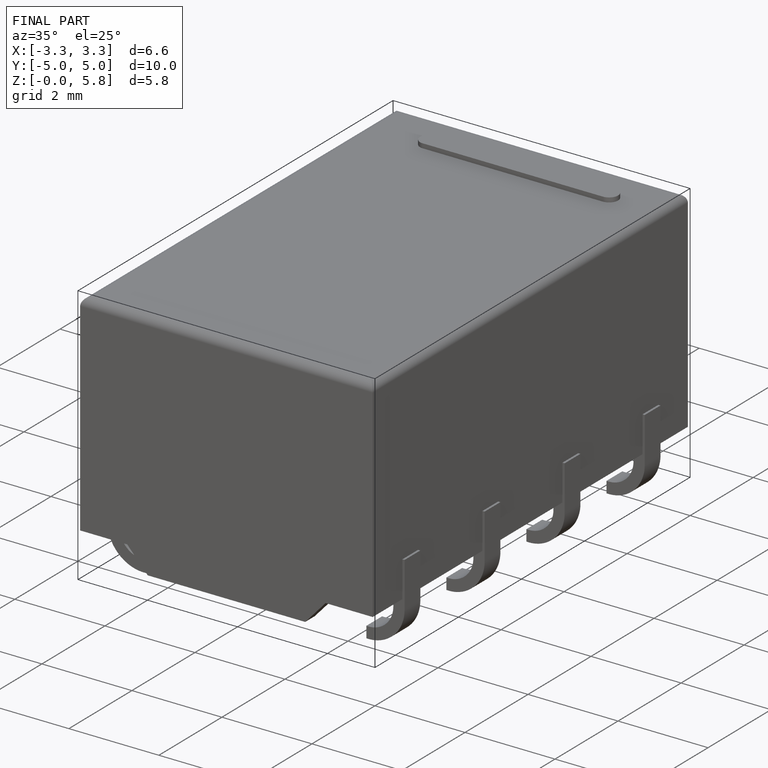
[diagram: finished part — iso view with bounding-box wireframe]
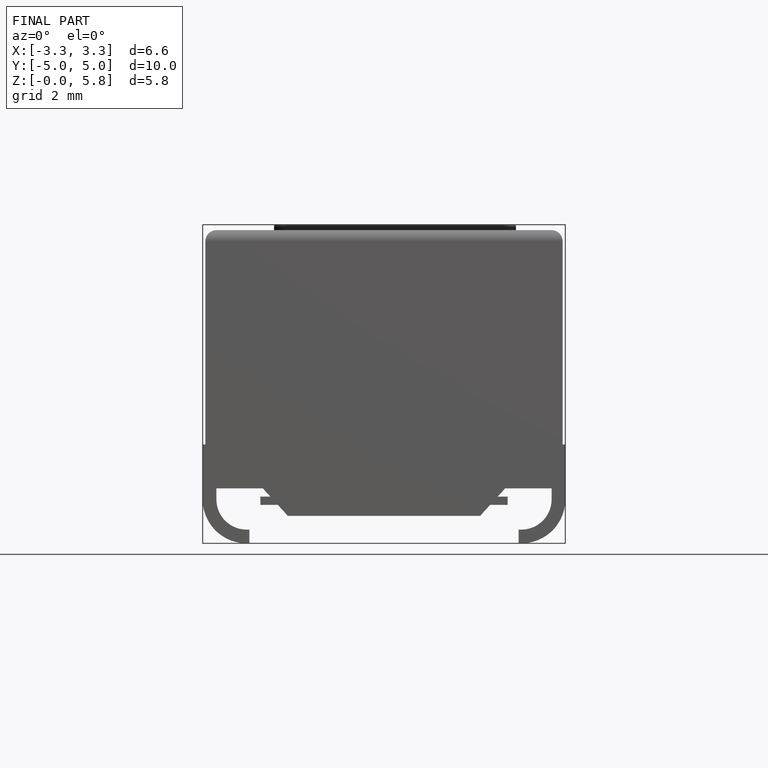
[diagram: finished part — front view with bounding-box wireframe]
